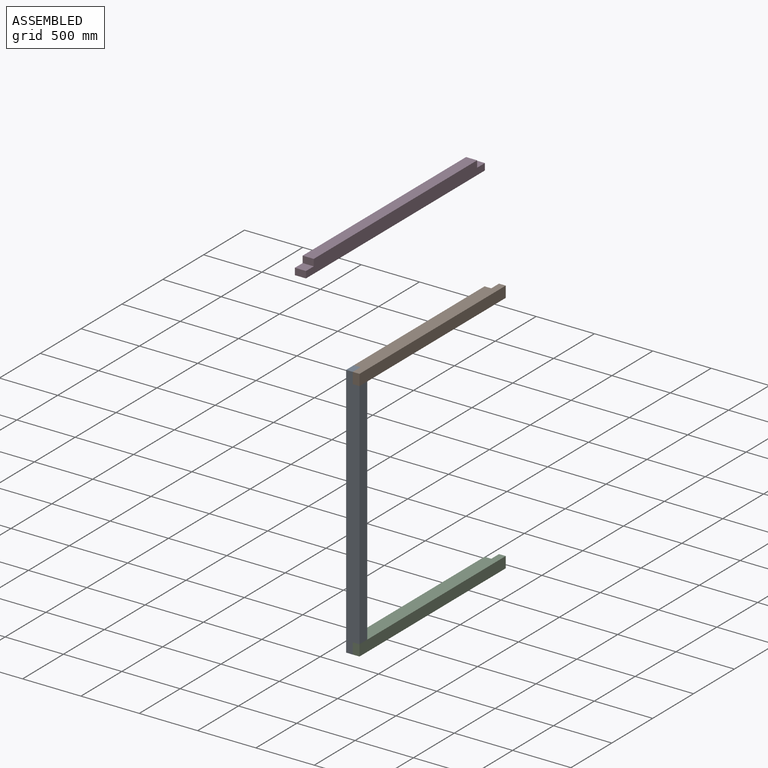
[diagram: assembled view]
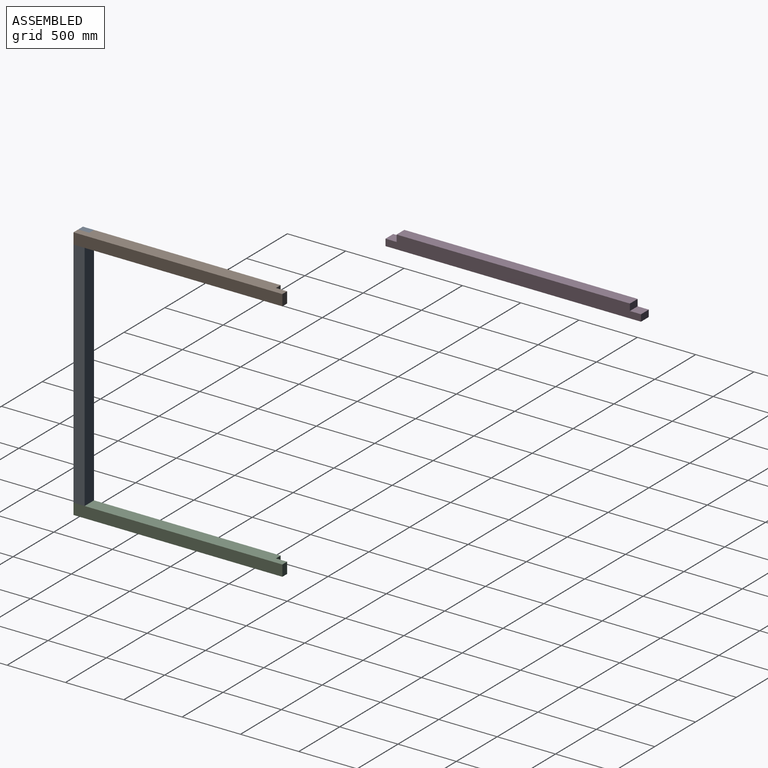
[diagram: assembled view, second angle]
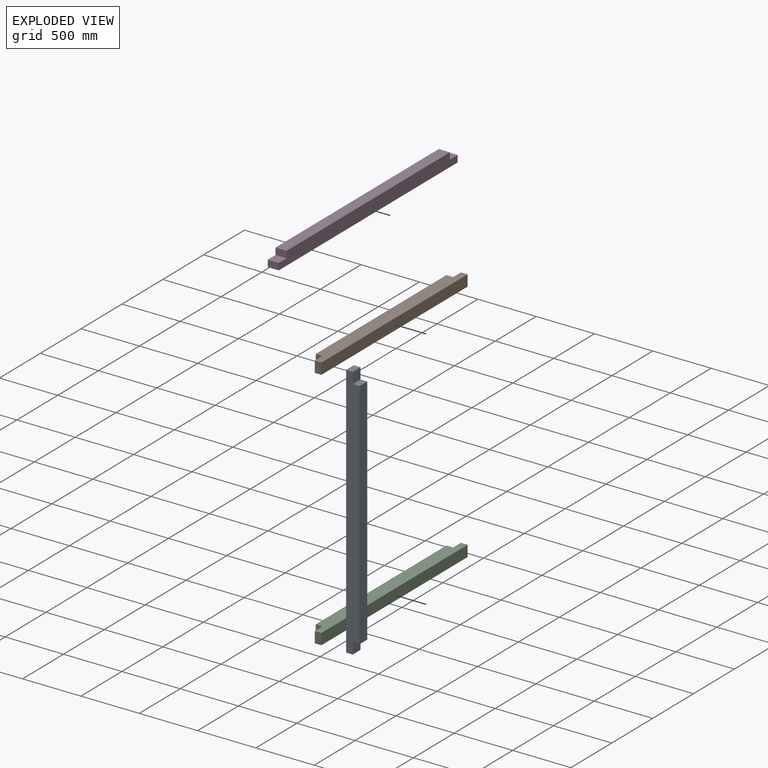
[diagram: exploded view]
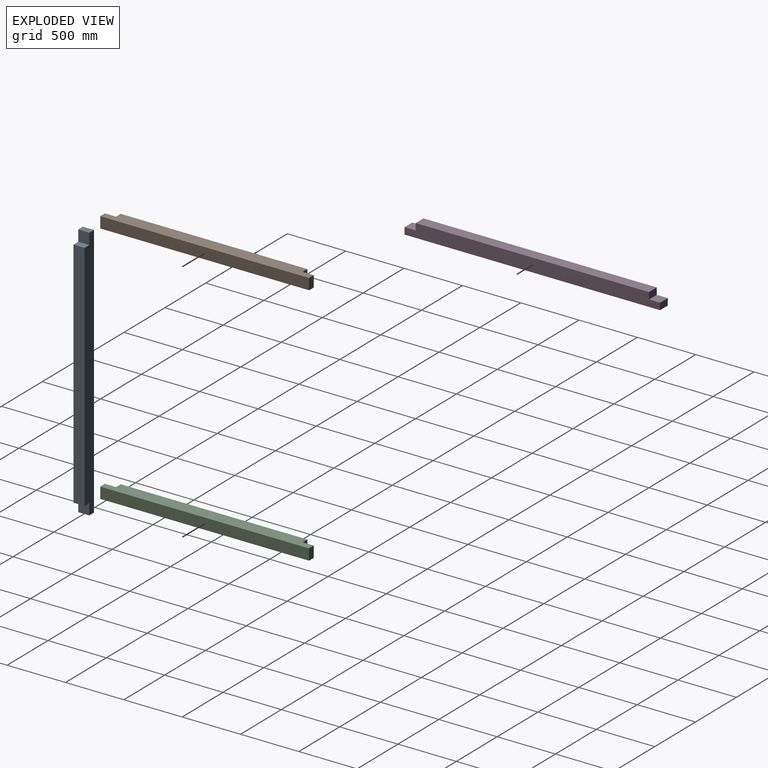
[diagram: exploded view, second angle]
ASSEMBLY  parts=4 mates=2
PART A: 10 faces, bbox 95x2190x115 mm
  f0: plane 2190x115mm, normal (-1,0,0), area 240925mm2, adj f1,f3,f4,f5,f6,f7,f8,f9
  f1: plane 2190x95mm, normal (0,0,-1), area 208050mm2, adj f0,f2,f7,f9
  f2: plane 2190x115mm, normal (1,0,0), area 240925mm2, adj f1,f3,f4,f5,f6,f7,f8,f9
  f3: plane 2000x95mm, normal (0,0,1), area 190000mm2, adj f0,f2,f4,f5
  f4: plane 95x57.5mm, normal (0,-1,0), area 5462.5mm2, adj f0,f2,f3,f8
  f5: plane 95x57.5mm, normal (0,1,0), area 5462.5mm2, adj f0,f2,f3,f6
  f6: plane 95x95mm, normal (0,0,1), area 9025mm2, adj f0,f2,f5,f7
  f7: plane 95x57.5mm, normal (0,1,0), area 5462.5mm2, adj f0,f1,f2,f6
  f8: plane 95x95mm, normal (0,0,1), area 9025mm2, adj f0,f2,f4,f9
  f9: plane 95x57.5mm, normal (0,-1,0), area 5462.5mm2, adj f0,f1,f2,f8
PART B: 10 faces, bbox 95x1790x115 mm
  f0: plane 1790x115mm, normal (-1,0,0), area 194925mm2, adj f1,f3,f4,f5,f6,f7,f8,f9
  f1: plane 1790x95mm, normal (0,0,-1), area 170050mm2, adj f0,f2,f7,f9
  f2: plane 1790x115mm, normal (1,0,0), area 194925mm2, adj f1,f3,f4,f5,f6,f7,f8,f9
  f3: plane 1600x95mm, normal (0,0,1), area 152000mm2, adj f0,f2,f4,f5
  f4: plane 95x57.5mm, normal (0,-1,0), area 5462.5mm2, adj f0,f2,f3,f8
  f5: plane 95x57.5mm, normal (0,1,0), area 5462.5mm2, adj f0,f2,f3,f6
  f6: plane 95x95mm, normal (0,0,1), area 9025mm2, adj f0,f2,f5,f7
  f7: plane 95x57.5mm, normal (0,1,0), area 5462.5mm2, adj f0,f1,f2,f6
  f8: plane 95x95mm, normal (0,0,1), area 9025mm2, adj f0,f2,f4,f9
  f9: plane 95x57.5mm, normal (0,-1,0), area 5462.5mm2, adj f0,f1,f2,f8
PART C: same geometry as B
PART D: same geometry as A
PLACE A rot(axis=(0.58,0.58,0.58),120deg) t=(254.07,-1915.54,830.04)mm
PLACE B rot(axis=(0,-1,0),90deg) t=(254.07,-268.04,877.54)mm
PLACE C rot(axis=(0,-1,0),90deg) t=(254.07,-268.04,-1217.46)mm
PLACE D t=(-1299.98,1710.61,700.49)mm
MATE fastened B.f8 <-> A.f6  axis (-1,0,0) through (254.07,-1915.54,877.54)mm
MATE fastened A.f8 <-> C.f8  axis (1,0,0) through (254.07,-1915.54,-1217.46)mm
